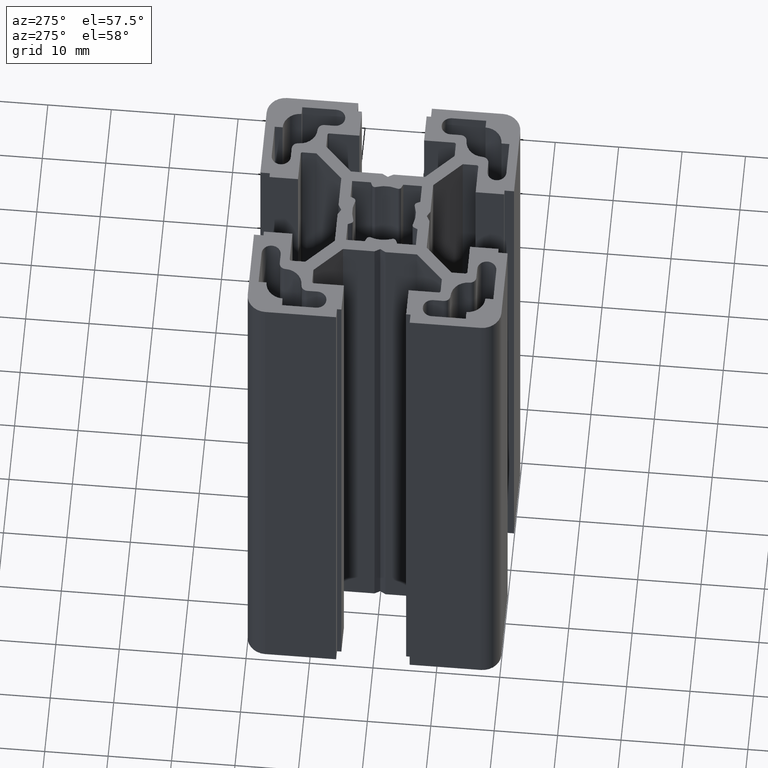
[diagram: clean part render]
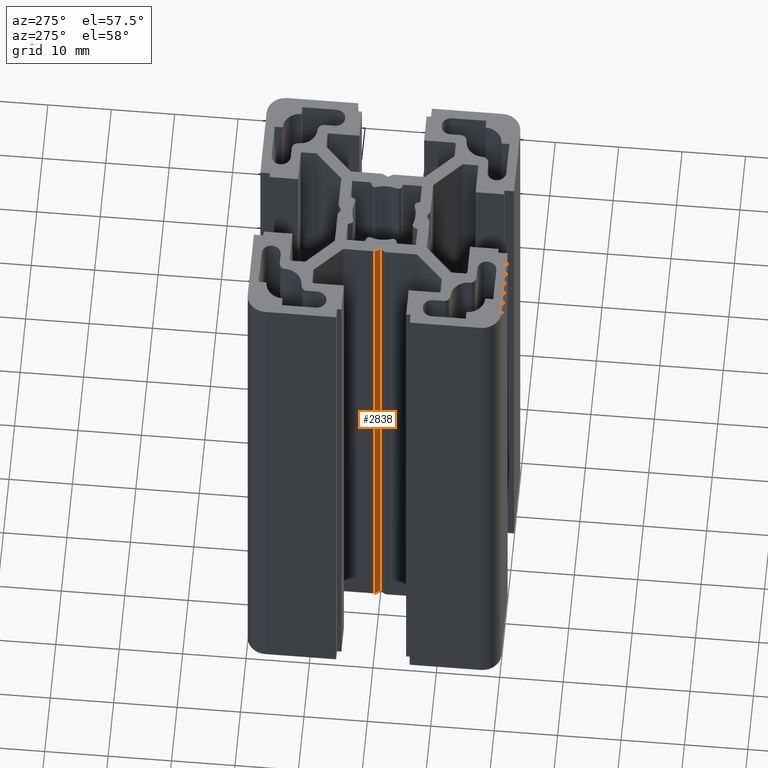
[diagram: same view with one face highlighted and labeled with its STEP entity id]
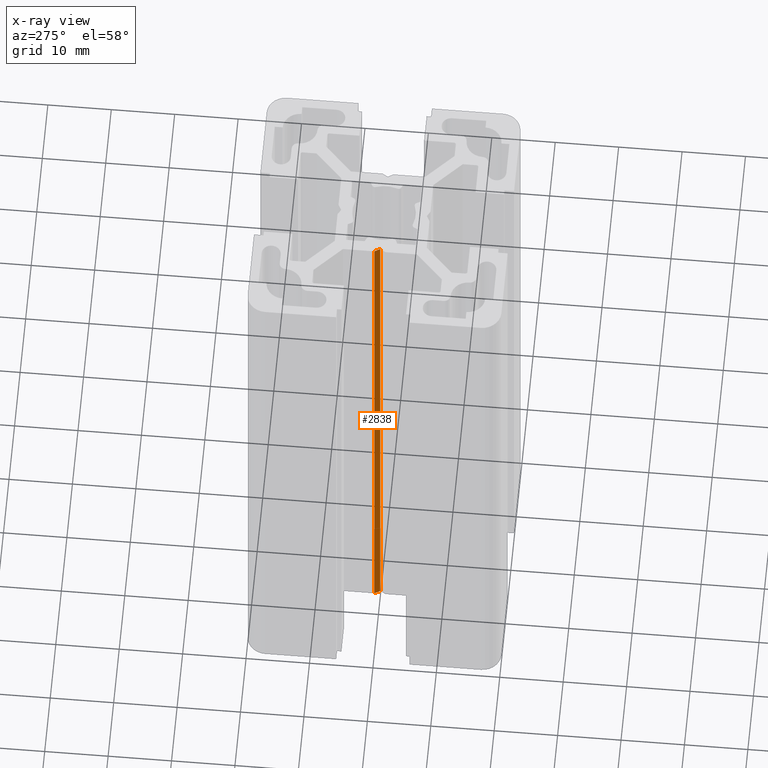
[diagram: x-ray of the same camera — body ghosted, the highlighted face saturated]
A machine part, auxiliary view. The second image highlights one B-rep face of the part: STEP entity #2838.
The next image is the same camera in x-ray: the body ghosted, the highlighted face saturated — about 0% of this face is hidden behind the body in this view.
In plain terms, the highlighted planar face has unit normal (0.866, 0.5, -0).
Its self-contained STEP definition (entity closure, byte-faithful):
#23 = LINE ( 'NONE', #36, #35 ) ;
#33 = DIRECTION ( 'NONE',  ( -0.0000000000000000000, -0.0000000000000000000, -1.000000000000000000 ) ) ;
#35 = VECTOR ( 'NONE', #33, 1000.000000000000000 ) ;
#36 = CARTESIAN_POINT ( 'NONE',  ( -6.750000000000000000, -9.536743231000000800E-007, 100.0000000000000000 ) ) ;
#2094 = EDGE_CURVE ( 'NONE', #2117, #2127, #4218, .T. ) ;
#2117 = VERTEX_POINT ( 'NONE', #4234 ) ;
#2127 = VERTEX_POINT ( 'NONE', #4280 ) ;
#2573 = VERTEX_POINT ( 'NONE', #5071 ) ;
#2578 = VERTEX_POINT ( 'NONE', #5065 ) ;
#2640 = EDGE_CURVE ( 'NONE', #2573, #2578, #5175, .T. ) ;
#2838 = ADVANCED_FACE ( 'NONE', ( #5497 ), #5528, .F. ) ;
#2839 = ORIENTED_EDGE ( 'NONE', *, *, #2640, .T. ) ;
#2840 = ORIENTED_EDGE ( 'NONE', *, *, #2851, .T. ) ;
#2841 = ORIENTED_EDGE ( 'NONE', *, *, #2094, .F. ) ;
#2851 = EDGE_CURVE ( 'NONE', #2117, #2573, #5552, .T. ) ;
#2864 = EDGE_LOOP ( 'NONE', ( #2839, #2902, #2841, #2840 ) ) ;
#2901 = EDGE_CURVE ( 'NONE', #2127, #2578, #23, .T. ) ;
#2902 = ORIENTED_EDGE ( 'NONE', *, *, #2901, .F. ) ;
#4215 = DIRECTION ( 'NONE',  ( 0.4999991740949446500, -0.8660258806204196300, -0.0000000000000000000 ) ) ;
#4216 = VECTOR ( 'NONE', #4215, 1000.000000000000100 ) ;
#4217 = CARTESIAN_POINT ( 'NONE',  ( -6.750000000000000000, -9.536743231000000800E-007, 100.0000000000000000 ) ) ;
#4218 = LINE ( 'NONE', #4217, #4216 ) ;
#4234 = CARTESIAN_POINT ( 'NONE',  ( -7.250000000000000000, 0.8660263574587658800, 100.0000000000000000 ) ) ;
#4280 = CARTESIAN_POINT ( 'NONE',  ( -6.750000000000000000, -9.536743231000000800E-007, 100.0000000000000000 ) ) ;
#5065 = CARTESIAN_POINT ( 'NONE',  ( -6.750000000000000000, -9.536743231000000800E-007, 0.0000000000000000000 ) ) ;
#5071 = CARTESIAN_POINT ( 'NONE',  ( -7.250000000000000000, 0.8660263574587658800, 0.0000000000000000000 ) ) ;
#5172 = DIRECTION ( 'NONE',  ( 0.4999991740949446500, -0.8660258806204196300, -0.0000000000000000000 ) ) ;
#5173 = VECTOR ( 'NONE', #5172, 1000.000000000000100 ) ;
#5174 = CARTESIAN_POINT ( 'NONE',  ( -6.750000000000000000, -9.536743231000000800E-007, 0.0000000000000000000 ) ) ;
#5175 = LINE ( 'NONE', #5174, #5173 ) ;
#5473 = CARTESIAN_POINT ( 'NONE',  ( -6.750000000000000000, -9.536743231000000800E-007, 100.0000000000000000 ) ) ;
#5497 = FACE_OUTER_BOUND ( 'NONE', #2864, .T. ) ;
#5498 = AXIS2_PLACEMENT_3D ( 'NONE', #5473, #5516, #5515 ) ;
#5515 = DIRECTION ( 'NONE',  ( -0.4999991740949446000, 0.8660258806204196300, 0.0000000000000000000 ) ) ;
#5516 = DIRECTION ( 'NONE',  ( 0.8660258806204196300, 0.4999991740949446000, -0.0000000000000000000 ) ) ;
#5528 = PLANE ( 'NONE',  #5498 ) ;
#5545 = DIRECTION ( 'NONE',  ( -0.0000000000000000000, -0.0000000000000000000, -1.000000000000000000 ) ) ;
#5546 = VECTOR ( 'NONE', #5545, 1000.000000000000000 ) ;
#5547 = CARTESIAN_POINT ( 'NONE',  ( -7.250000000000000000, 0.8660263574587658800, 100.0000000000000000 ) ) ;
#5552 = LINE ( 'NONE', #5547, #5546 ) ;